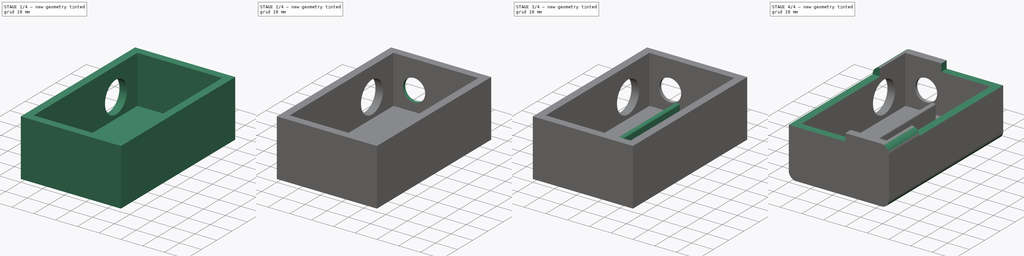
[diagram: build sequence overview — one tinted view per stage of 4, left to right]
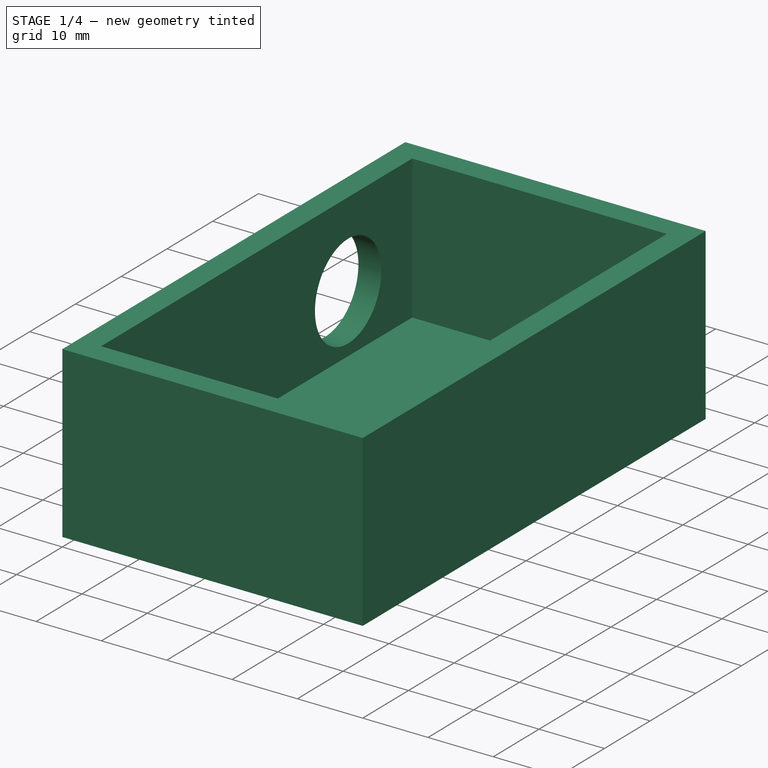
[diagram: stage 1 of 4 — iso view after this stage's code; geometry added in this stage tinted green]
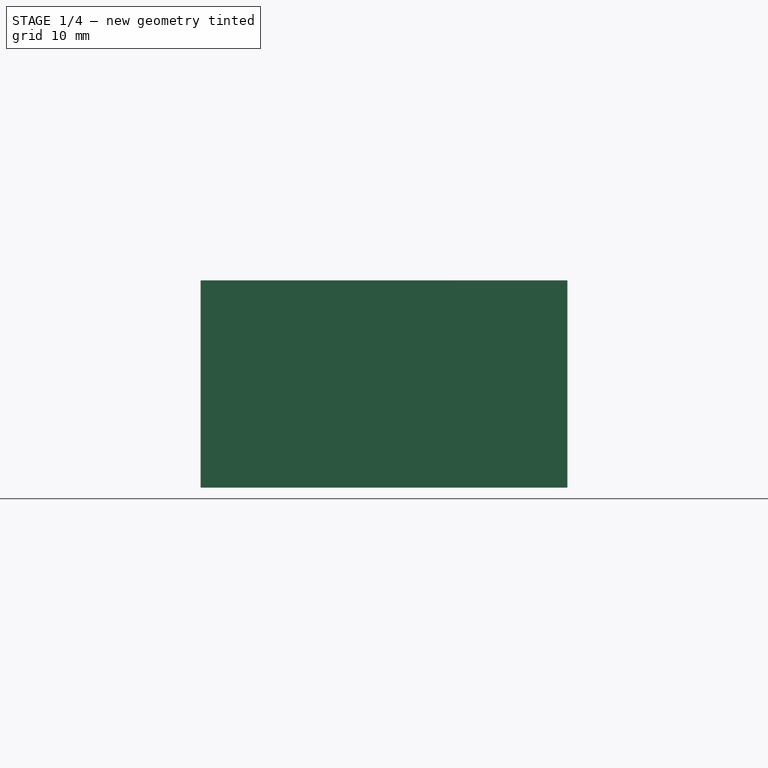
[diagram: stage 1 of 4 — front view after this stage's code; geometry added in this stage tinted green]
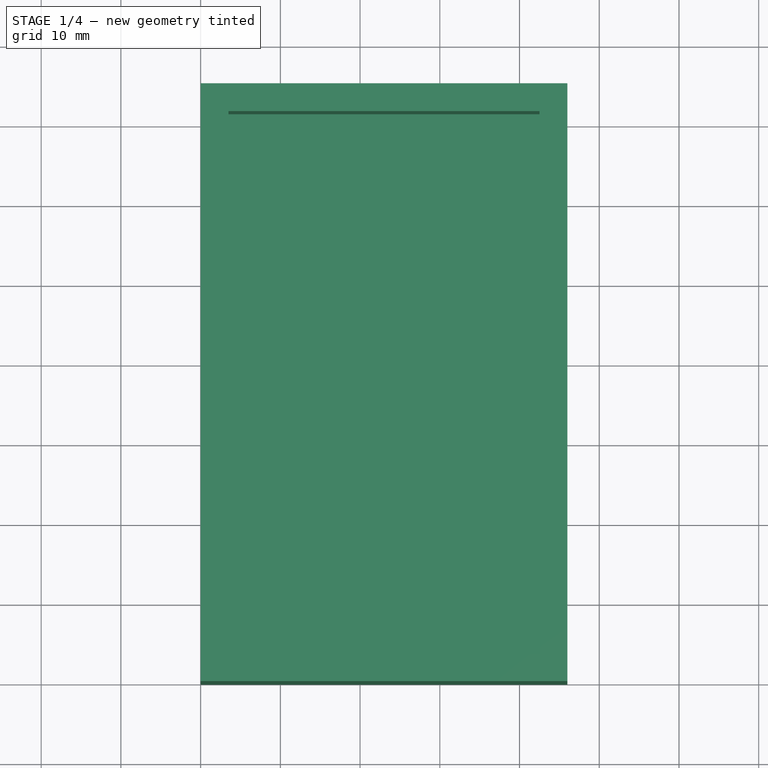
[diagram: stage 1 of 4 — top view after this stage's code; geometry added in this stage tinted green]
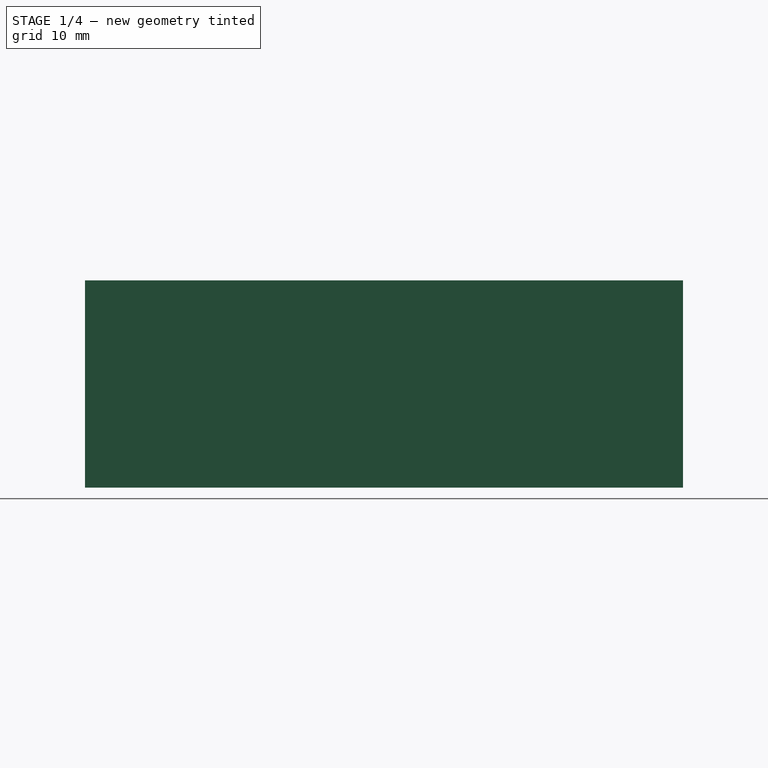
[diagram: stage 1 of 4 — right view after this stage's code; geometry added in this stage tinted green]
FCSTD DOCUMENT  (FreeCAD 0.17RUnknown)
Label: mod
License: All rights reserved
LicenseURL: http://en.wikipedia.org/wiki/All_rights_reserved
objects: Sketcher::SketchObject×8, PartDesign::Pocket×5, PartDesign::Pad×3, PartDesign::Fillet×3, PartDesign::Plane×1, PartDesign::Body×1
note: 29 computed .brp shape members not serialized (recipe doc carries the construction recipe); baked Part::Feature solids carry a one-line shape summary decoded from their .brp

FEATURE [Sketcher::SketchObject] Sketch
  MapMode = 5
  Support = -> [XY_Plane]
  sketch-geometry (4):
    g0: LineSegment StartX=0 StartY=75 StartZ=0 EndX=46 EndY=75 EndZ=0
    g1: LineSegment StartX=46 StartY=75 StartZ=0 EndX=46 EndY=0 EndZ=0
    g2: LineSegment StartX=46 StartY=0 StartZ=0 EndX=0 EndY=0 EndZ=0
    g3: LineSegment StartX=0 StartY=0 StartZ=0 EndX=0 EndY=75 EndZ=0
  constraints (12):
    c: Coincident(g0,g1)
    c: Coincident(g1,g2)
    c: Coincident(g2,g3)
    c: Coincident(g3,g0)
    c: Horizontal(g0)
    c: Horizontal(g2)
    c: Vertical(g1)
    c: Vertical(g3)
    c: DistanceX(g0,g0) = 46
    c: DistanceY(g1,g1) = 75
    c: DistanceX(g2) = 0
    c: DistanceY(g2) = 0
FEATURE [PartDesign::Pad] Pad  label="box"
  Length = 26
  Length2 = 100
  Profile = -> Sketch
  Type = 0
FEATURE [Sketcher::SketchObject] Sketch002
  MapMode = 5
  Placement = pos=(0,0,26) rot=(0,0,1;0rad)
  Support = -> [Pad]
  sketch-geometry (4):
    g0: LineSegment StartX=3.5 StartY=71.5 StartZ=0 EndX=42.5 EndY=71.5 EndZ=0
    g1: LineSegment StartX=42.5 StartY=71.5 StartZ=0 EndX=42.5 EndY=3.5 EndZ=0
    g2: LineSegment StartX=42.5 StartY=3.5 StartZ=0 EndX=3.5 EndY=3.5 EndZ=0
    g3: LineSegment StartX=3.5 StartY=3.5 StartZ=0 EndX=3.5 EndY=71.5 EndZ=0
  constraints (12):
    c: Coincident(g0,g1)
    c: Coincident(g1,g2)
    c: Coincident(g2,g3)
    c: Coincident(g3,g0)
    c: Horizontal(g0)
    c: Horizontal(g2)
    c: Vertical(g1)
    c: Vertical(g3)
    c: DistanceX(g0,g0) = 39
    c: DistanceY(g1,g1) = 68
    c: DistanceX(g2) = 3.5
    c: DistanceY(g2) = 3.5
FEATURE [PartDesign::Pocket] Pocket  label="inside carv"
  BaseFeature = -> Pad
  Length = 22
  Length2 = 100
  Profile = -> Sketch002
  Type = 0
FEATURE [Sketcher::SketchObject] Sketch003
  MapMode = 5
  Placement = pos=(0,0,0) rot=(0.57735,-0.57735,-0.57735;2.0944rad)
  Support = -> [Pocket]
  sketch-geometry (1):
    g0: Circle CenterX=-57.5 CenterY=13 CenterZ=0 NormalX=0 NormalY=0 NormalZ=1 AngleXU=0 Radius=7.25
  constraints (3):
    c: DistanceX(g0) = -57.5
    c: DistanceY(g0) = 13
    c: Radius(g0) = 7.25
FEATURE [PartDesign::Pocket] Pocket001  label="button hole"
  BaseFeature = -> Pocket
  Length = 5
  Length2 = 100
  Profile = -> Sketch003
  Type = 0
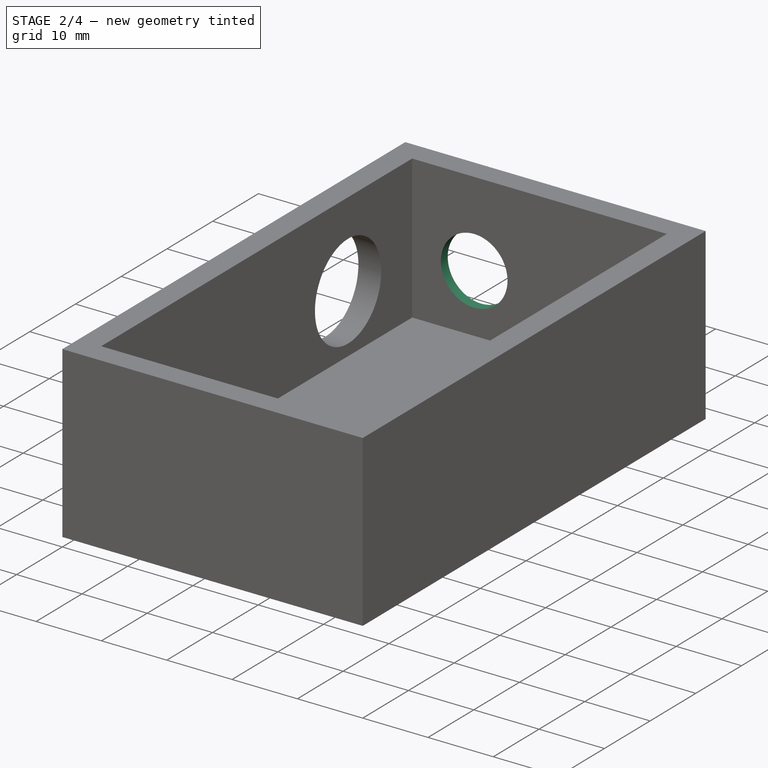
[diagram: stage 2 of 4 — iso view after this stage's code; geometry added in this stage tinted green]
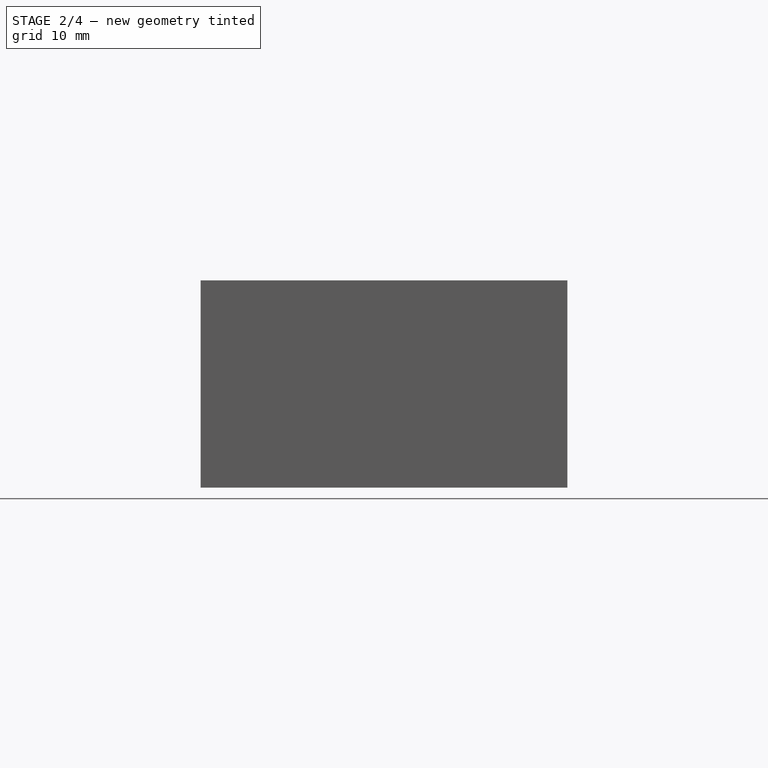
[diagram: stage 2 of 4 — front view after this stage's code; geometry added in this stage tinted green]
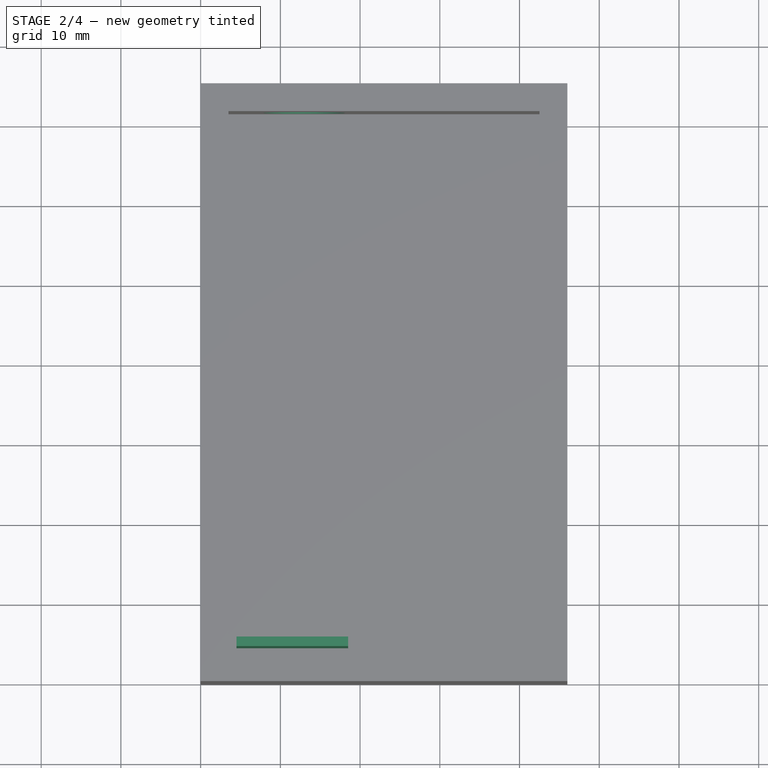
[diagram: stage 2 of 4 — top view after this stage's code; geometry added in this stage tinted green]
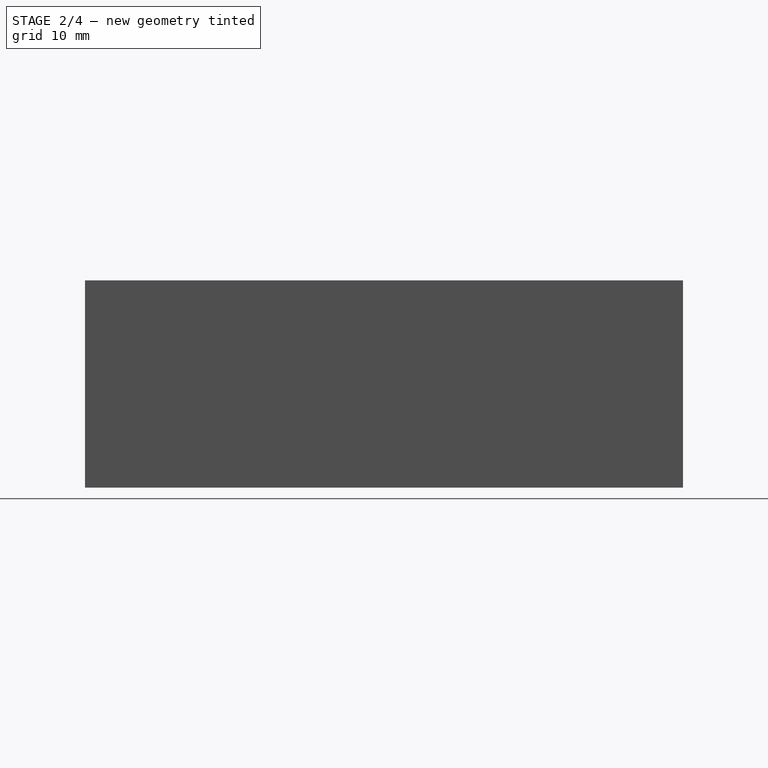
[diagram: stage 2 of 4 — right view after this stage's code; geometry added in this stage tinted green]
FEATURE [Sketcher::SketchObject] Sketch004
  MapMode = 5
  Placement = pos=(0,75,0) rot=(0,0.707107,0.707107;3.14159rad)
  Support = -> [Pocket001]
  sketch-geometry (1):
    g0: Circle CenterX=-13 CenterY=13 CenterZ=0 NormalX=0 NormalY=0 NormalZ=1 AngleXU=0 Radius=11
  constraints (3):
    c: Radius(g0) = 11
    c: DistanceX(g0) = -13
    c: DistanceY(g0) = 13
FEATURE [PartDesign::Pocket] Pocket002  label="washer counter sink"
  BaseFeature = -> Pocket001
  Length = 2
  Length2 = 100
  Profile = -> Sketch004
  Type = 0
FEATURE [Sketcher::SketchObject] Sketch005
  MapMode = 5
  Placement = pos=(0,73,0) rot=(0,0.707107,0.707107;3.14159rad)
  Support = -> [Pocket002]
  sketch-geometry (1):
    g0: Circle CenterX=-13 CenterY=13 CenterZ=0 NormalX=0 NormalY=0 NormalZ=1 AngleXU=0 Radius=5.1
  constraints (3):
    c: DistanceX(g0) = -13
    c: DistanceY(g0) = 13
    c: Radius(g0) = 5.1
FEATURE [PartDesign::Pocket] Pocket003  label="510 thread hole"
  BaseFeature = -> Pocket002
  Length = 5
  Length2 = 100
  Profile = -> Sketch005
  Type = 0
FEATURE [Sketcher::SketchObject] Sketch006
  MapMode = 5
  Placement = pos=(0,0,4) rot=(0,0,1;0rad)
  Support = -> [Pocket003]
  sketch-geometry (4):
    g0: LineSegment StartX=4.5 StartY=5.7 StartZ=0 EndX=18.5 EndY=5.7 EndZ=0
    g1: LineSegment StartX=18.5 StartY=5.7 StartZ=0 EndX=18.5 EndY=4.5 EndZ=0
    g2: LineSegment StartX=18.5 StartY=4.5 StartZ=0 EndX=4.5 EndY=4.5 EndZ=0
    g3: LineSegment StartX=4.5 StartY=4.5 StartZ=0 EndX=4.5 EndY=5.7 EndZ=0
  constraints (12):
    c: Coincident(g0,g1)
    c: Coincident(g1,g2)
    c: Coincident(g2,g3)
    c: Coincident(g3,g0)
    c: Horizontal(g0)
    c: Horizontal(g2)
    c: Vertical(g1)
    c: Vertical(g3)
    c: DistanceX(g0,g0) = 14
    c: DistanceY(g1,g1) = 1.2
    c: DistanceX(g2) = 4.5
    c: DistanceY(g2) = 4.5
FEATURE [PartDesign::Pad] Pad001  label="contact support"
  BaseFeature = -> Pocket003
  Length = 16
  Length2 = 100
  Profile = -> Sketch006
  Type = 0
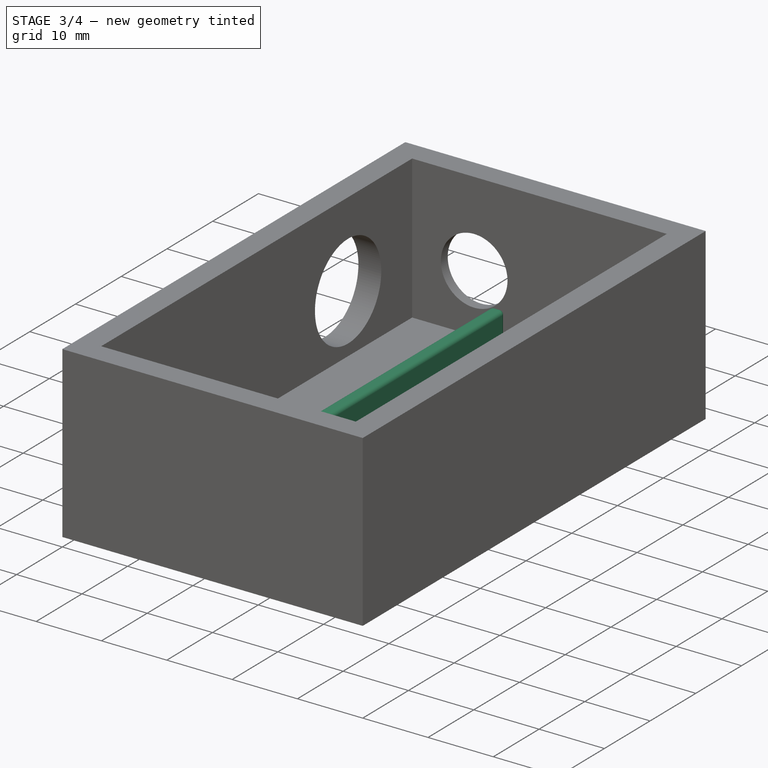
[diagram: stage 3 of 4 — iso view after this stage's code; geometry added in this stage tinted green]
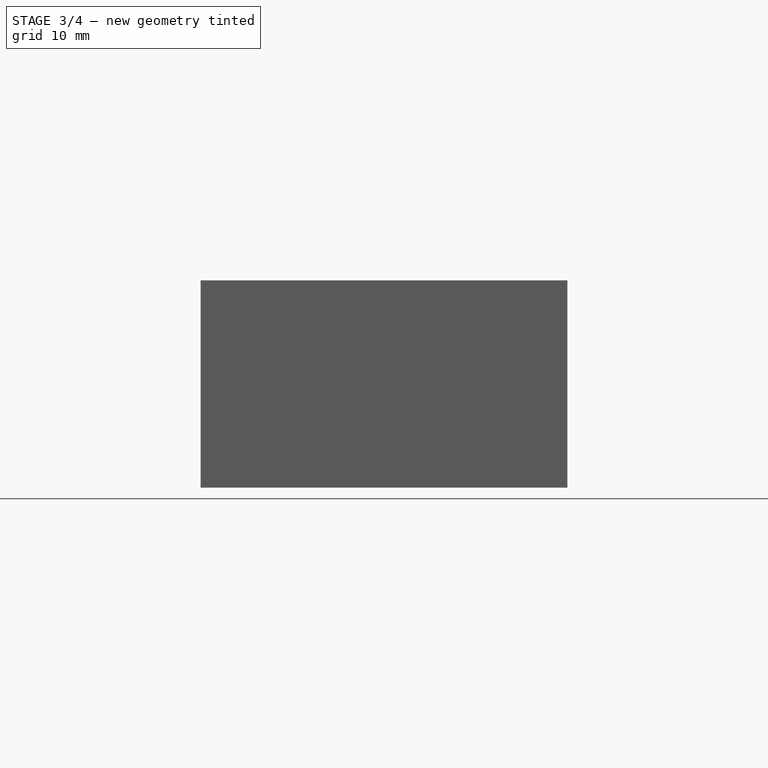
[diagram: stage 3 of 4 — front view after this stage's code; geometry added in this stage tinted green]
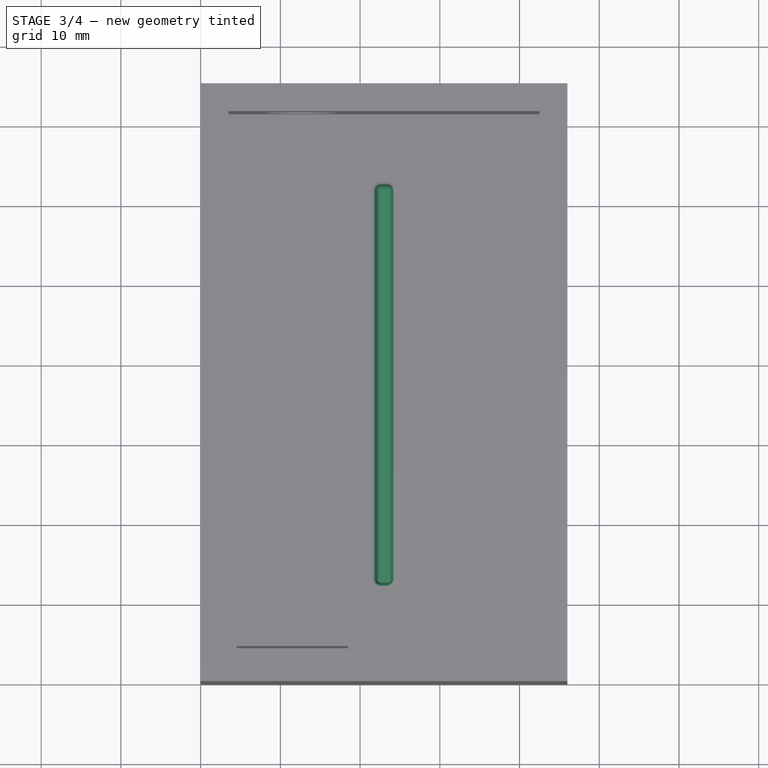
[diagram: stage 3 of 4 — top view after this stage's code; geometry added in this stage tinted green]
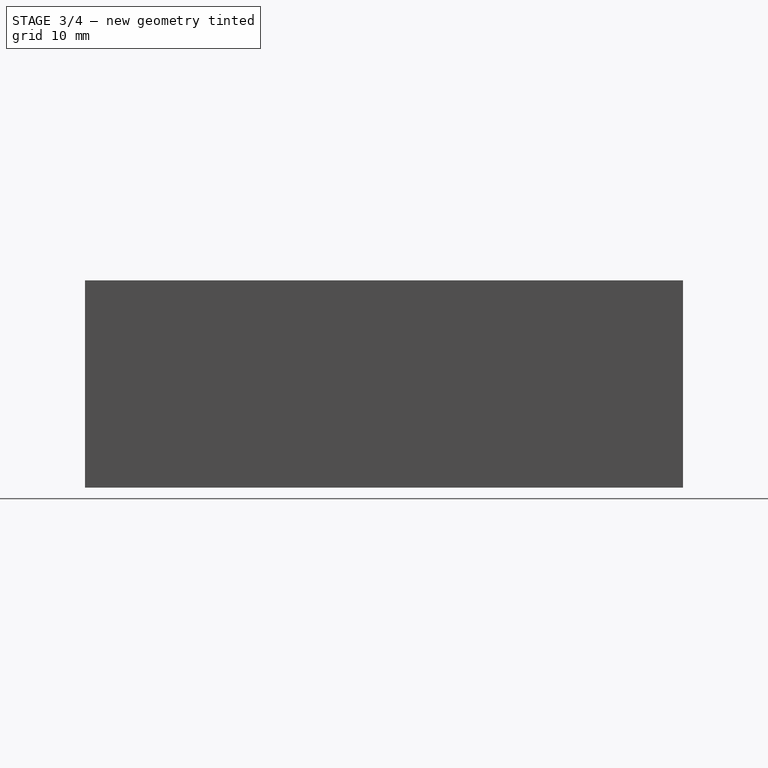
[diagram: stage 3 of 4 — right view after this stage's code; geometry added in this stage tinted green]
FEATURE [Sketcher::SketchObject] Sketch007
  MapMode = 5
  Placement = pos=(0,0,4) rot=(0,0,1;0rad)
  Support = -> [Pad001]
  sketch-geometry (4):
    g0: LineSegment StartX=22 StartY=62.5 StartZ=0 EndX=24 EndY=62.5 EndZ=0
    g1: LineSegment StartX=24 StartY=62.5 StartZ=0 EndX=24 EndY=12.5 EndZ=0
    g2: LineSegment StartX=24 StartY=12.5 StartZ=0 EndX=22 EndY=12.5 EndZ=0
    g3: LineSegment StartX=22 StartY=12.5 StartZ=0 EndX=22 EndY=62.5 EndZ=0
  constraints (12):
    c: Coincident(g0,g1)
    c: Coincident(g1,g2)
    c: Coincident(g2,g3)
    c: Coincident(g3,g0)
    c: Horizontal(g0)
    c: Horizontal(g2)
    c: Vertical(g1)
    c: Vertical(g3)
    c: DistanceX(g0,g0) = 2
    c: DistanceY(g1,g1) = 50
    c: DistanceX(g1) = 24
    c: DistanceY(g1) = 12.5
FEATURE [PartDesign::Pad] Pad002  label="battery sep"
  BaseFeature = -> Pad001
  Length = 10
  Length2 = 100
  Profile = -> Sketch007
  Type = 0
FEATURE [PartDesign::Fillet] Fillet
  Base = -> Pad002 [Edge47,Edge43,Edge44,Edge46,Edge45,Edge34,Face16,Edge33,Edge35,Edge36,Edge48,Edge49]
  BaseFeature = -> Pad002
  Radius = 0.6
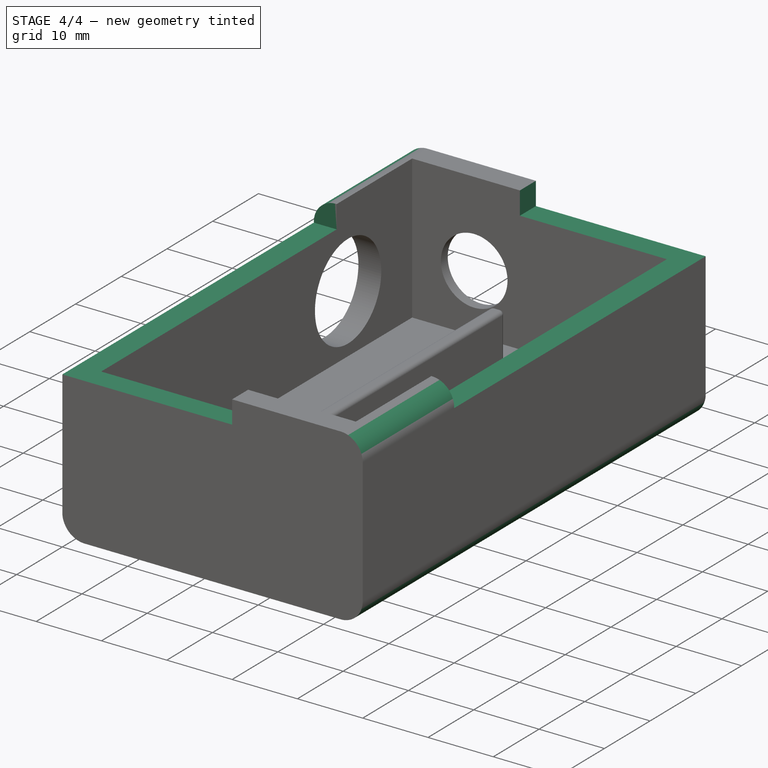
[diagram: stage 4 of 4 — iso view after this stage's code; geometry added in this stage tinted green]
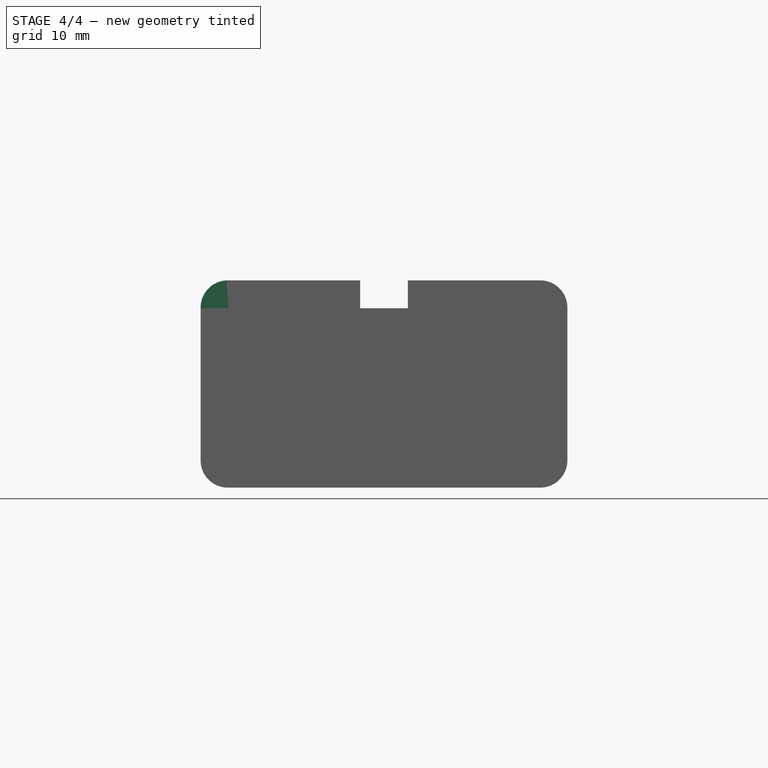
[diagram: stage 4 of 4 — front view after this stage's code; geometry added in this stage tinted green]
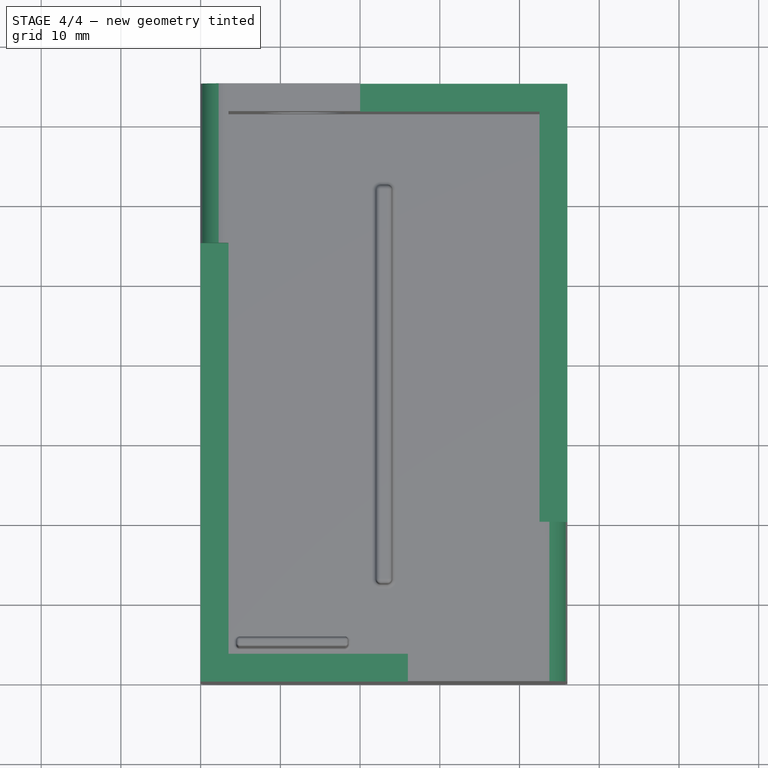
[diagram: stage 4 of 4 — top view after this stage's code; geometry added in this stage tinted green]
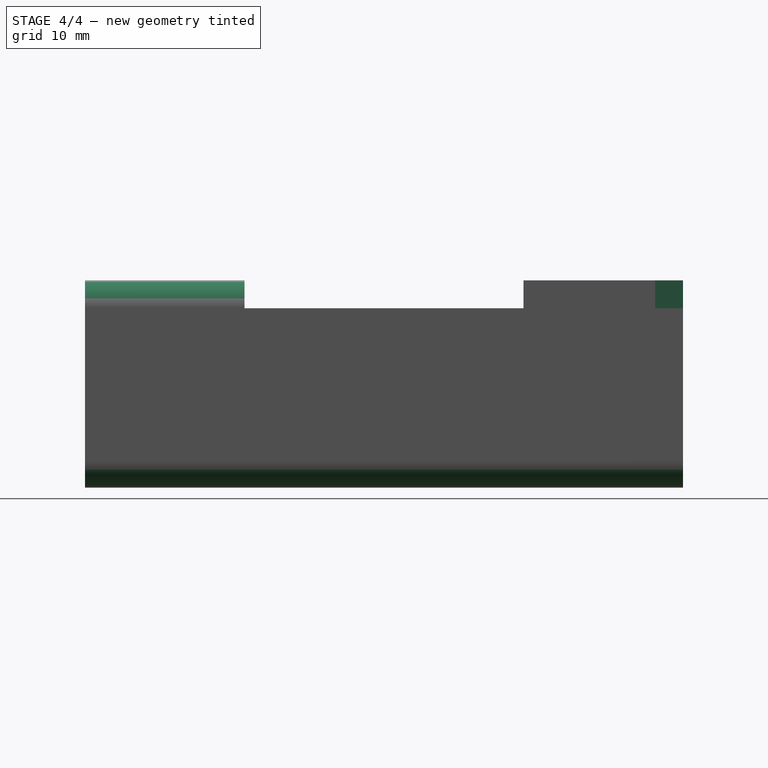
[diagram: stage 4 of 4 — right view after this stage's code; geometry added in this stage tinted green]
FEATURE [PartDesign::Fillet] Fillet002
  Base = -> Fillet [Edge48,Edge47,Face16,Face15,Face17,Face14]
  BaseFeature = -> Fillet
  Radius = 0.4
FEATURE [PartDesign::Fillet] Fillet003
  Base = -> Fillet002 [Edge96,Edge140,Edge97,Edge142]
  BaseFeature = -> Fillet002
  Radius = 3.4
FEATURE [PartDesign::Plane] DatumPlane  label="front of mod"
  MapMode = 5
  Placement = pos=(0,0,26) rot=(0,0,1;0rad)
  Support = -> [Fillet003]
FEATURE [Sketcher::SketchObject] Sketch008
  MapMode = 5
  Placement = pos=(0,0,26) rot=(0,0,1;0rad)
  Support = -> [Fillet003]
  sketch-geometry (8):
    g0: LineSegment StartX=20 StartY=75 StartZ=0 EndX=46 EndY=75 EndZ=0
    g1: LineSegment StartX=46 StartY=75 StartZ=0 EndX=46 EndY=20 EndZ=0
    g2: LineSegment StartX=46 StartY=20 StartZ=0 EndX=20 EndY=20 EndZ=0
    g3: LineSegment StartX=20 StartY=20 StartZ=0 EndX=20 EndY=75 EndZ=0
    g4: LineSegment StartX=0 StartY=55 StartZ=0 EndX=26 EndY=55 EndZ=0
    g5: LineSegment StartX=26 StartY=55 StartZ=0 EndX=26 EndY=0 EndZ=0
    g6: LineSegment StartX=26 StartY=0 StartZ=0 EndX=0 EndY=0 EndZ=0
    g7: LineSegment StartX=0 StartY=0 StartZ=0 EndX=0 EndY=55 EndZ=0
  constraints (24):
    c: Coincident(g0,g1)
    c: Coincident(g1,g2)
    c: Coincident(g2,g3)
    c: Coincident(g3,g0)
    c: Horizontal(g0)
    c: Horizontal(g2)
    c: Vertical(g1)
    c: Vertical(g3)
    c: Coincident(g4,g5)
    c: Coincident(g5,g6)
    c: Coincident(g6,g7)
    c: Coincident(g7,g4)
    c: Horizontal(g4)
    c: Horizontal(g6)
    c: Vertical(g5)
    c: Vertical(g7)
    c: DistanceX(g0,g0) = 26
    c: DistanceX(g6,g6) = 26
    c: DistanceY(g1,g1) = 55
    c: DistanceY(g7,g7) = 55
    c: DistanceX(g6) = 0
    c: DistanceY(g6) = 0
    c: DistanceX(g0) = 46
    c: DistanceY(g0) = 75
FEATURE [PartDesign::Pocket] Pocket004  label="soor cutout"
  BaseFeature = -> Fillet003
  Length = 3.5
  Length2 = 100
  Profile = -> Sketch008
  Type = 0
FEATURE [PartDesign::Body] Body  label="mod"
  Group = -> [Sketch,Pad,Sketch002,Pocket,Sketch003,Pocket001,Sketch004,Pocket002,Sketch005,Pocket003,Sketch006,Pad001,Sketch007,Pad002,Fillet,Fillet002,Fillet003,DatumPlane,Sketch008,Pocket004]
  Origin = -> Origin
  Tip = -> Pocket004
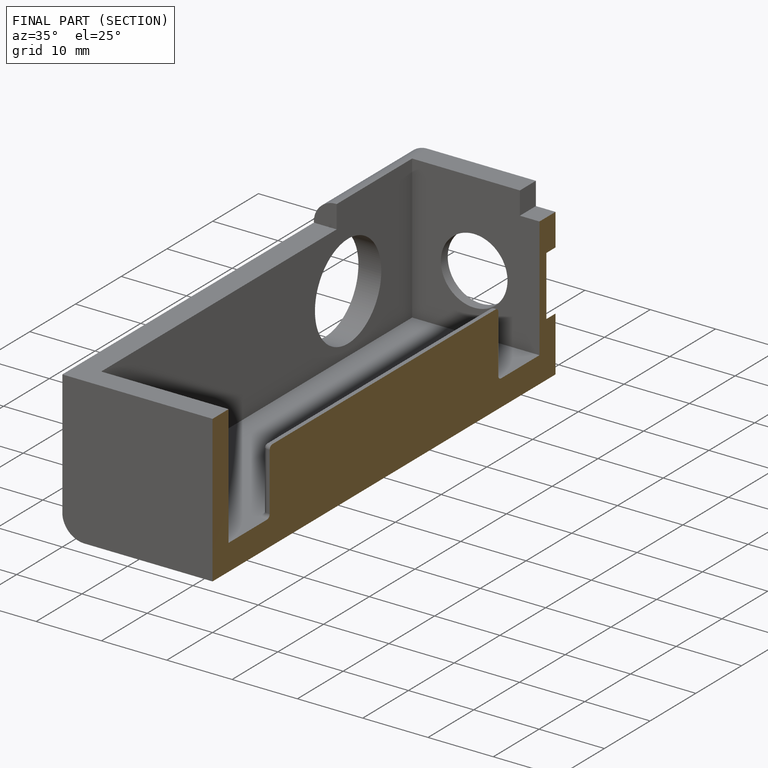
[diagram: finished part — half-section view (interior)]
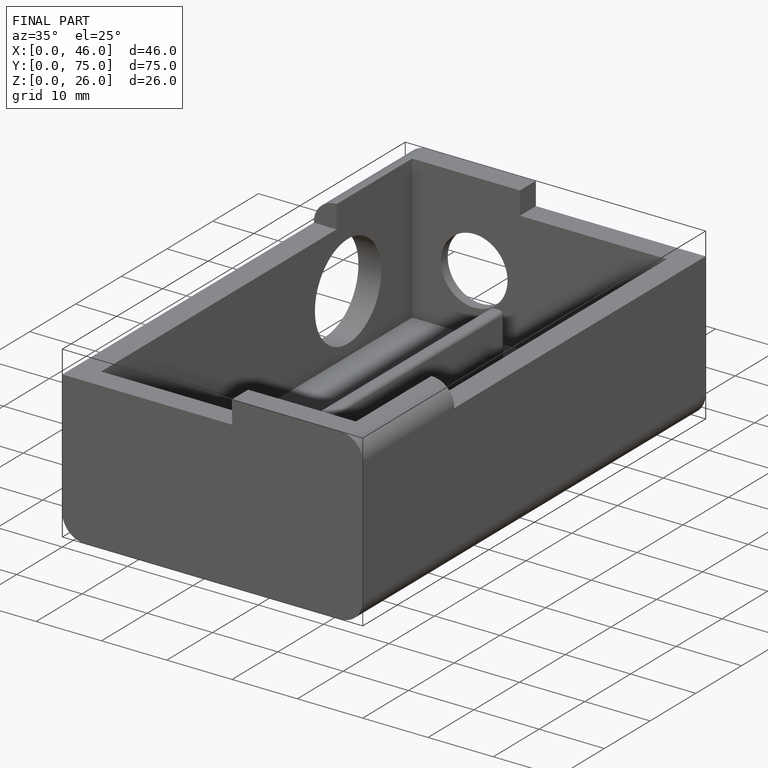
[diagram: finished part — iso view with bounding-box wireframe]
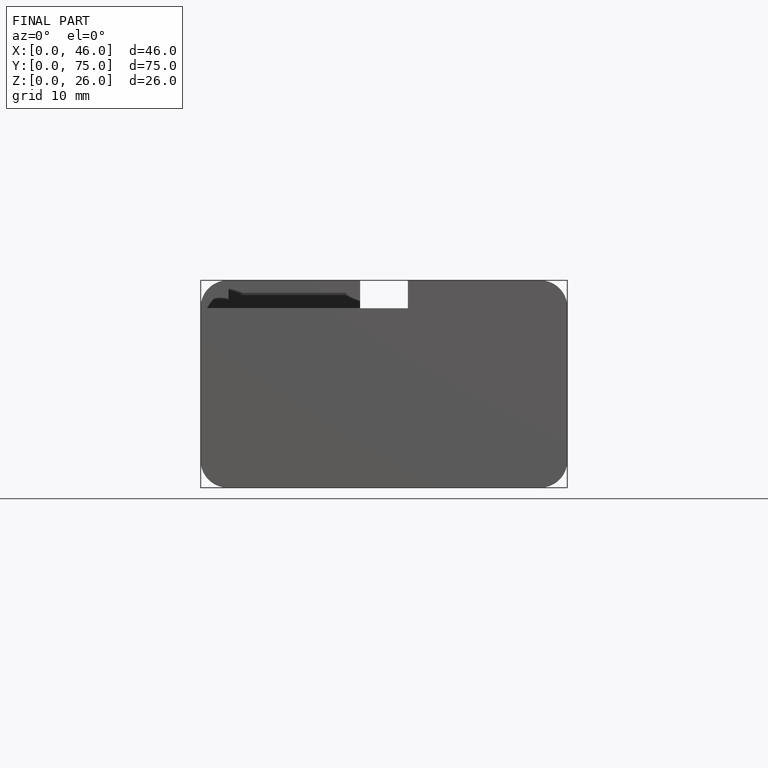
[diagram: finished part — front view with bounding-box wireframe]
